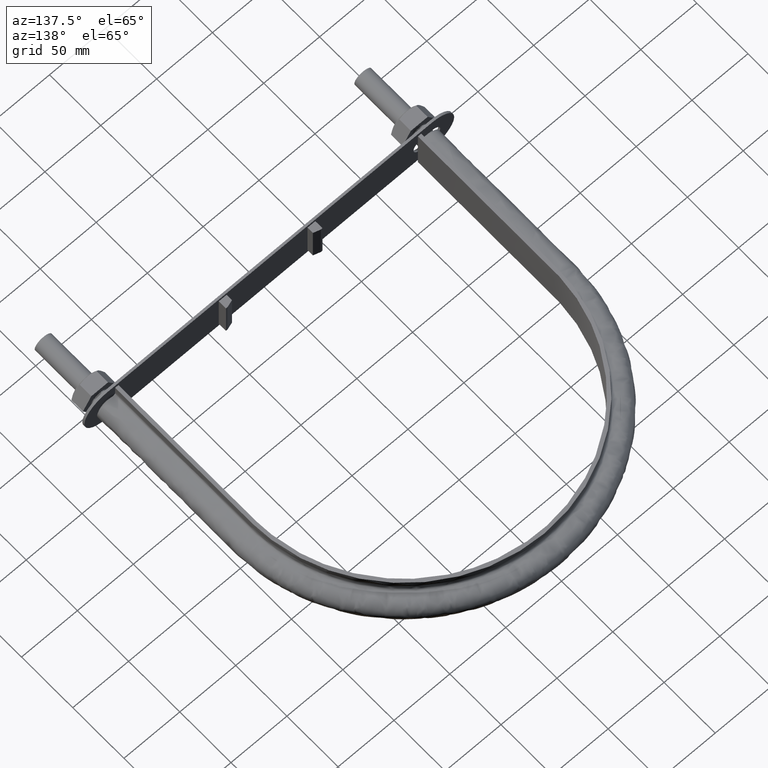
[diagram: clean part render]
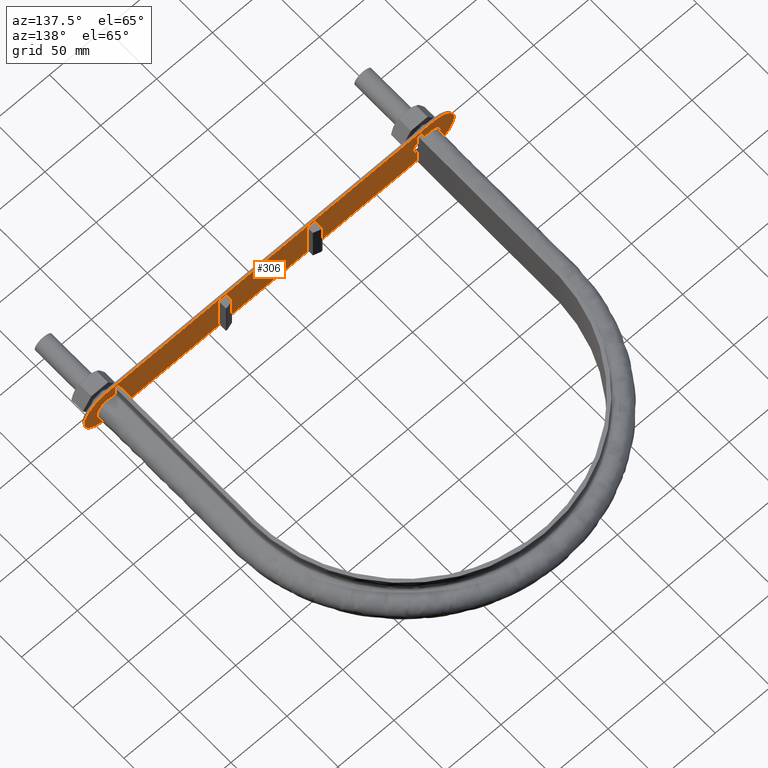
[diagram: same view with one face highlighted and labeled with its STEP entity id]
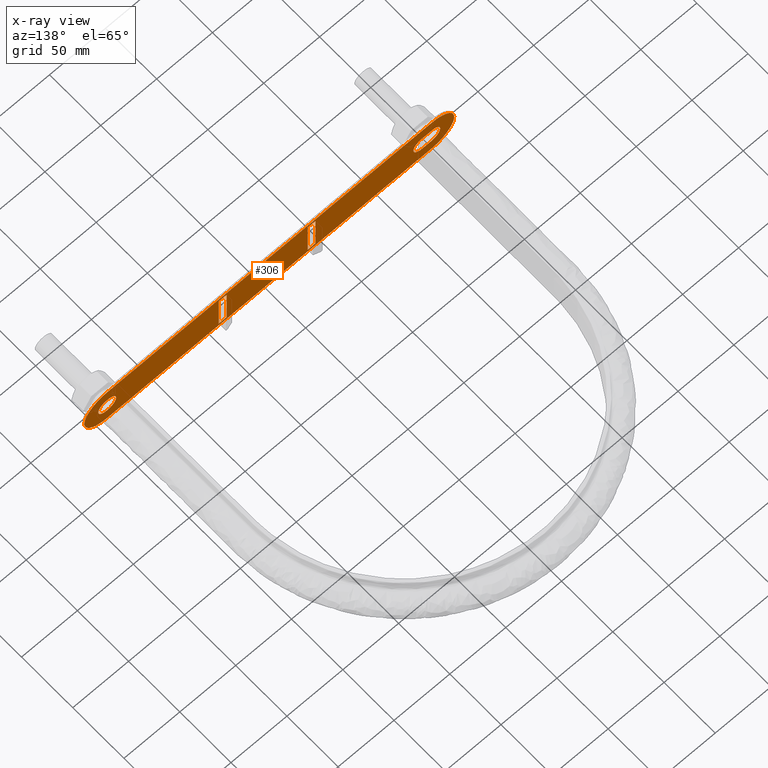
[diagram: x-ray of the same camera — body ghosted, the highlighted face saturated]
A machine part, auxiliary view. The second image highlights one B-rep face of the part: STEP entity #306.
The next image is the same camera in x-ray: the body ghosted, the highlighted face saturated — about 0% of this face is hidden behind the body in this view.
In plain terms, the highlighted planar face has unit normal (-0, 1, 0).
Its self-contained STEP definition (entity closure, byte-faithful):
#306 = ADVANCED_FACE( '', ( #455, #456, #457, #458, #459 ), #460, .T. );
#455 = FACE_BOUND( '', #1596, .T. );
#456 = FACE_BOUND( '', #1597, .T. );
#457 = FACE_BOUND( '', #1598, .T. );
#458 = FACE_OUTER_BOUND( '', #1599, .T. );
#459 = FACE_BOUND( '', #1600, .T. );
#460 = PLANE( '', #1601 );
#1596 = EDGE_LOOP( '', ( #2183, #2184, #2185, #2186 ) );
#1597 = EDGE_LOOP( '', ( #2187, #2188, #2189, #2190 ) );
#1598 = EDGE_LOOP( '', ( #2191 ) );
#1599 = EDGE_LOOP( '', ( #2192, #2193, #2194, #2195, #2196, #2197 ) );
#1600 = EDGE_LOOP( '', ( #2198, #2199, #2200, #2201 ) );
#1601 = AXIS2_PLACEMENT_3D( '', #2202, #2203, #2204 );
#2183 = ORIENTED_EDGE( '', *, *, #2671, .T. );
#2184 = ORIENTED_EDGE( '', *, *, #2672, .T. );
#2185 = ORIENTED_EDGE( '', *, *, #2673, .F. );
#2186 = ORIENTED_EDGE( '', *, *, #2674, .F. );
#2187 = ORIENTED_EDGE( '', *, *, #2675, .T. );
#2188 = ORIENTED_EDGE( '', *, *, #2676, .T. );
#2189 = ORIENTED_EDGE( '', *, *, #2677, .T. );
#2190 = ORIENTED_EDGE( '', *, *, #2678, .T. );
#2191 = ORIENTED_EDGE( '', *, *, #2679, .F. );
#2192 = ORIENTED_EDGE( '', *, *, #2661, .T. );
#2193 = ORIENTED_EDGE( '', *, *, #2680, .T. );
#2194 = ORIENTED_EDGE( '', *, *, #2681, .T. );
#2195 = ORIENTED_EDGE( '', *, *, #2682, .T. );
#2196 = ORIENTED_EDGE( '', *, *, #2683, .T. );
#2197 = ORIENTED_EDGE( '', *, *, #2684, .T. );
#2198 = ORIENTED_EDGE( '', *, *, #2685, .F. );
#2199 = ORIENTED_EDGE( '', *, *, #2686, .T. );
#2200 = ORIENTED_EDGE( '', *, *, #2687, .T. );
#2201 = ORIENTED_EDGE( '', *, *, #2688, .F. );
#2202 = CARTESIAN_POINT( '', ( -147.500000000000, 62.3999999977114, 1.03330053286987E-006 ) );
#2203 = DIRECTION( '', ( -1.55166293017277E-011, 1.00000000000000, 1.01088637399885E-011 ) );
#2204 = DIRECTION( '', ( 7.00543067999911E-009, -1.01088636312878E-011, 1.00000000000000 ) );
#2661 = EDGE_CURVE( '', #2908, #2909, #2910, .T. );
#2671 = EDGE_CURVE( '', #2924, #2925, #2926, .T. );
#2672 = EDGE_CURVE( '', #2925, #2927, #2928, .T. );
#2673 = EDGE_CURVE( '', #2929, #2927, #2930, .T. );
#2674 = EDGE_CURVE( '', #2924, #2929, #2931, .T. );
#2675 = EDGE_CURVE( '', #2932, #2933, #2934, .F. );
#2676 = EDGE_CURVE( '', #2933, #2935, #2936, .T. );
#2677 = EDGE_CURVE( '', #2935, #2937, #2938, .T. );
#2678 = EDGE_CURVE( '', #2937, #2932, #2939, .T. );
#2679 = EDGE_CURVE( '', #2940, #2940, #2941, .T. );
#2680 = EDGE_CURVE( '', #2909, #2942, #2943, .T. );
#2681 = EDGE_CURVE( '', #2942, #2944, #2945, .T. );
#2682 = EDGE_CURVE( '', #2944, #2946, #2947, .T. );
#2683 = EDGE_CURVE( '', #2946, #2948, #2949, .T. );
#2684 = EDGE_CURVE( '', #2948, #2908, #2950, .T. );
#2685 = EDGE_CURVE( '', #2951, #2952, #2953, .T. );
#2686 = EDGE_CURVE( '', #2951, #2954, #2955, .T. );
#2687 = EDGE_CURVE( '', #2954, #2956, #2957, .T. );
#2688 = EDGE_CURVE( '', #2952, #2956, #2958, .T. );
#2908 = VERTEX_POINT( '', #3734 );
#2909 = VERTEX_POINT( '', #3735 );
#2910 = CIRCLE( '', #3736, 20.0000000000000 );
#2924 = VERTEX_POINT( '', #3759 );
#2925 = VERTEX_POINT( '', #3760 );
#2926 = LINE( '', #3761, #3762 );
#2927 = VERTEX_POINT( '', #3763 );
#2928 = LINE( '', #3764, #3765 );
#2929 = VERTEX_POINT( '', #3766 );
#2930 = LINE( '', #3767, #3768 );
#2931 = LINE( '', #3769, #3770 );
#2932 = VERTEX_POINT( '', #3771 );
#2933 = VERTEX_POINT( '', #3772 );
#2934 = LINE( '', #3773, #3774 );
#2935 = VERTEX_POINT( '', #3775 );
#2936 = CIRCLE( '', #3776, 8.00000000000000 );
#2937 = VERTEX_POINT( '', #3777 );
#2938 = LINE( '', #3778, #3779 );
#2939 = CIRCLE( '', #3780, 8.00000000000000 );
#2940 = VERTEX_POINT( '', #3781 );
#2941 = CIRCLE( '', #3782, 8.00000000000001 );
#2942 = VERTEX_POINT( '', #3783 );
#2943 = LINE( '', #3784, #3785 );
#2944 = VERTEX_POINT( '', #3786 );
#2945 = CIRCLE( '', #3787, 20.0000000000000 );
#2946 = VERTEX_POINT( '', #3788 );
#2947 = CIRCLE( '', #3789, 20.0000000000000 );
#2948 = VERTEX_POINT( '', #3790 );
#2949 = LINE( '', #3791, #3792 );
#2950 = CIRCLE( '', #3793, 20.0000000000000 );
#2951 = VERTEX_POINT( '', #3794 );
#2952 = VERTEX_POINT( '', #3795 );
#2953 = LINE( '', #3796, #3797 );
#2954 = VERTEX_POINT( '', #3798 );
#2955 = LINE( '', #3799, #3800 );
#2956 = VERTEX_POINT( '', #3801 );
#2957 = LINE( '', #3802, #3803 );
#2958 = LINE( '', #3804, #3805 );
#3734 = CARTESIAN_POINT( '', ( -167.500000000000, 62.3999999974011, 1.17340914646985E-006 ) );
#3735 = CARTESIAN_POINT( '', ( -147.499999859891, 62.3999999975092, 20.0000010333005 ) );
#3736 = AXIS2_PLACEMENT_3D( '', #4249, #4250, #4251 );
#3759 = CARTESIAN_POINT( '', ( -43.2000001225951, 62.3999999995067, -17.4999996973659 ) );
#3760 = CARTESIAN_POINT( '', ( -36.2000001225951, 62.3999999996153, -17.4999997464039 ) );
#3761 = CARTESIAN_POINT( '', ( -43.2000001225951, 62.3999999995067, -17.4999996973659 ) );
#3762 = VECTOR( '', #4261, 1000.00000000000 );
#3763 = CARTESIAN_POINT( '', ( -36.1999998774050, 62.3999999992615, 17.5000002535961 ) );
#3764 = CARTESIAN_POINT( '', ( -36.2000001225951, 62.3999999996153, -17.4999997464039 ) );
#3765 = VECTOR( '', #4262, 1000.00000000000 );
#3766 = CARTESIAN_POINT( '', ( -43.1999998774050, 62.3999999991529, 17.5000003026341 ) );
#3767 = CARTESIAN_POINT( '', ( -43.1999998774050, 62.3999999991529, 17.5000003026341 ) );
#3768 = VECTOR( '', #4263, 1000.00000000000 );
#3769 = CARTESIAN_POINT( '', ( -43.2000001225951, 62.3999999995067, -17.4999996973659 ) );
#3770 = VECTOR( '', #4264, 1000.00000000000 );
#3771 = CARTESIAN_POINT( '', ( -138.999999943957, 62.4000099977624, 8.00000097375437 ) );
#3772 = CARTESIAN_POINT( '', ( -146.999999943957, 62.4000099976383, 8.00000102979781 ) );
#3773 = CARTESIAN_POINT( '', ( -147.499999943957, 62.3999999976306, 8.00000103330053 ) );
#3774 = VECTOR( '', #4265, 1000.00000000000 );
#3775 = CARTESIAN_POINT( '', ( -147.000000056044, 62.4000099978001, -7.99999897020219 ) );
#3776 = AXIS2_PLACEMENT_3D( '', #4266, #4267, #4268 );
#3777 = CARTESIAN_POINT( '', ( -139.000000056044, 62.4000099979242, -7.99999902624563 ) );
#3778 = CARTESIAN_POINT( '', ( -147.500000056044, 62.3999999977923, -7.99999896669947 ) );
#3779 = VECTOR( '', #4269, 1000.00000000000 );
#3780 = AXIS2_PLACEMENT_3D( '', #4270, #4271, #4272 );
#3781 = CARTESIAN_POINT( '', ( 151.000000000000, 62.4000100023431, -1.05782054582541E-006 ) );
#3782 = AXIS2_PLACEMENT_3D( '', #4273, #4274, #4275 );
#3783 = CARTESIAN_POINT( '', ( 143.500000140109, 62.4000000020246, 19.9999989947202 ) );
#3784 = CARTESIAN_POINT( '', ( -147.499999859891, 62.3999999975092, 20.0000010333005 ) );
#3785 = VECTOR( '', #4276, 1000.00000000000 );
#3786 = CARTESIAN_POINT( '', ( 163.500000000000, 62.4000000025371, -1.14538840860981E-006 ) );
#3787 = AXIS2_PLACEMENT_3D( '', #4277, #4278, #4279 );
#3788 = CARTESIAN_POINT( '', ( 143.499999859891, 62.4000000024289, -20.0000010052798 ) );
#3789 = AXIS2_PLACEMENT_3D( '', #4280, #4281, #4282 );
#3790 = CARTESIAN_POINT( '', ( -147.500000140109, 62.3999999979136, -19.9999989666995 ) );
#3791 = CARTESIAN_POINT( '', ( 143.499999859891, 62.4000000024289, -20.0000010052798 ) );
#3792 = VECTOR( '', #4283, 1000.00000000000 );
#3793 = AXIS2_PLACEMENT_3D( '', #4284, #4285, #4286 );
#3794 = CARTESIAN_POINT( '', ( 36.1999998774049, 62.4000000007387, -17.5000002535971 ) );
#3795 = CARTESIAN_POINT( '', ( 36.2000001225950, 62.4000000003849, 17.4999997464029 ) );
#3796 = CARTESIAN_POINT( '', ( 36.1999998774049, 62.4000000007387, -17.5000002535971 ) );
#3797 = VECTOR( '', #4287, 1000.00000000000 );
#3798 = CARTESIAN_POINT( '', ( 43.1999998774049, 62.4000000008474, -17.5000003026351 ) );
#3799 = CARTESIAN_POINT( '', ( 36.1999998774049, 62.4000000007387, -17.5000002535971 ) );
#3800 = VECTOR( '', #4288, 1000.00000000000 );
#3801 = CARTESIAN_POINT( '', ( 43.2000001225950, 62.4000000004935, 17.4999996973649 ) );
#3802 = CARTESIAN_POINT( '', ( 43.1999998774049, 62.4000000008473, -17.5000003026351 ) );
#3803 = VECTOR( '', #4289, 1000.00000000000 );
#3804 = CARTESIAN_POINT( '', ( 36.2000001225950, 62.4000000003849, 17.4999997464029 ) );
#3805 = VECTOR( '', #4290, 1000.00000000000 );
#4249 = CARTESIAN_POINT( '', ( -147.500000000000, 62.3999999977114, 1.03330053286987E-006 ) );
#4250 = DIRECTION( '', ( -1.55166293017277E-011, 1.00000000000000, 1.01088637399885E-011 ) );
#4251 = DIRECTION( '', ( -1.00000000000000, -1.55166293725446E-011, 7.00543050652661E-009 ) );
#4261 = DIRECTION( '', ( 1.00000000000000, 1.55166293725446E-011, -7.00543067999895E-009 ) );
#4262 = DIRECTION( '', ( 7.00543074660830E-009, -1.01083150850027E-011, 1.00000000000000 ) );
#4263 = DIRECTION( '', ( 1.00000000000000, 1.55166293725446E-011, -7.00543067999895E-009 ) );
#4264 = DIRECTION( '', ( 7.00543074660830E-009, -1.01083150850027E-011, 1.00000000000000 ) );
#4265 = DIRECTION( '', ( 1.00000000000000, 1.55166293725446E-011, -7.00543067999895E-009 ) );
#4266 = CARTESIAN_POINT( '', ( -147.000000000000, 62.4000099977192, 1.02979781069207E-006 ) );
#4267 = DIRECTION( '', ( 1.55166293017277E-011, -1.00000000000000, -1.01088637399885E-011 ) );
#4268 = DIRECTION( '', ( 7.00543067999911E-009, -1.01088636312878E-011, 1.00000000000000 ) );
#4269 = DIRECTION( '', ( 1.00000000000000, 1.55166293725446E-011, -7.00543067999895E-009 ) );
#4270 = CARTESIAN_POINT( '', ( -139.000000000000, 62.4000099978433, 9.73754365252073E-007 ) );
#4271 = DIRECTION( '', ( 1.55166293017277E-011, -1.00000000000000, -1.01088637399885E-011 ) );
#4272 = DIRECTION( '', ( -7.00543067999911E-009, 1.01088636312878E-011, -1.00000000000000 ) );
#4273 = CARTESIAN_POINT( '', ( 143.000000000000, 62.4000100022190, -1.00177710038542E-006 ) );
#4274 = DIRECTION( '', ( -1.55166293017277E-011, 1.00000000000000, 1.01088637399885E-011 ) );
#4275 = DIRECTION( '', ( 1.00000000000000, 1.55166293725446E-011, -7.00543067999895E-009 ) );
#4276 = DIRECTION( '', ( 1.00000000000000, 1.55166293725446E-011, -7.00543067999895E-009 ) );
#4277 = CARTESIAN_POINT( '', ( 143.500000000000, 62.4000000022268, -1.00527979500983E-006 ) );
#4278 = DIRECTION( '', ( -1.55166293017277E-011, 1.00000000000000, 1.01088637399885E-011 ) );
#4279 = DIRECTION( '', ( 7.00543067999911E-009, -1.01088636312878E-011, 1.00000000000000 ) );
#4280 = CARTESIAN_POINT( '', ( 143.500000000000, 62.4000000022268, -1.00527979500983E-006 ) );
#4281 = DIRECTION( '', ( -1.55166293017277E-011, 1.00000000000000, 1.01088637399885E-011 ) );
#4282 = DIRECTION( '', ( 1.00000000000000, 1.55166293725446E-011, -7.00543050652661E-009 ) );
#4283 = DIRECTION( '', ( -1.00000000000000, -1.55166293725446E-011, 7.00543067999895E-009 ) );
#4284 = CARTESIAN_POINT( '', ( -147.500000000000, 62.3999999977114, 1.03330053286987E-006 ) );
#4285 = DIRECTION( '', ( -1.55166293017277E-011, 1.00000000000000, 1.01088637399885E-011 ) );
#4286 = DIRECTION( '', ( -7.00543067999911E-009, 1.01088636312878E-011, -1.00000000000000 ) );
#4287 = DIRECTION( '', ( 7.00543074660830E-009, -1.01083150850027E-011, 1.00000000000000 ) );
#4288 = DIRECTION( '', ( 1.00000000000000, 1.55166293725446E-011, -7.00543067999895E-009 ) );
#4289 = DIRECTION( '', ( 7.00543074660830E-009, -1.01083150850027E-011, 1.00000000000000 ) );
#4290 = DIRECTION( '', ( 1.00000000000000, 1.55166293725446E-011, -7.00543067999895E-009 ) );